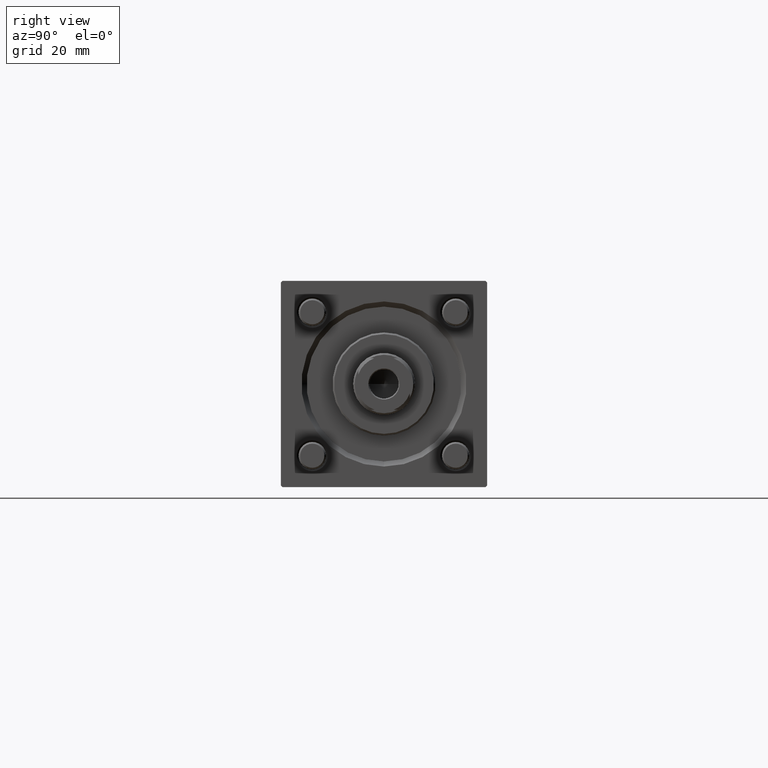
[diagram: clean part render]
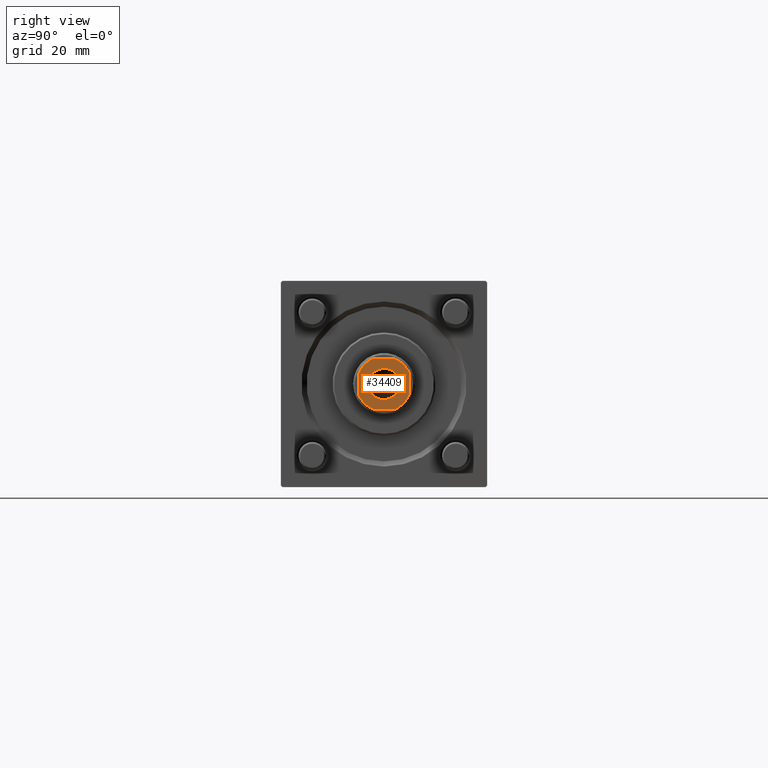
[diagram: same view with one face highlighted and labeled with its STEP entity id]
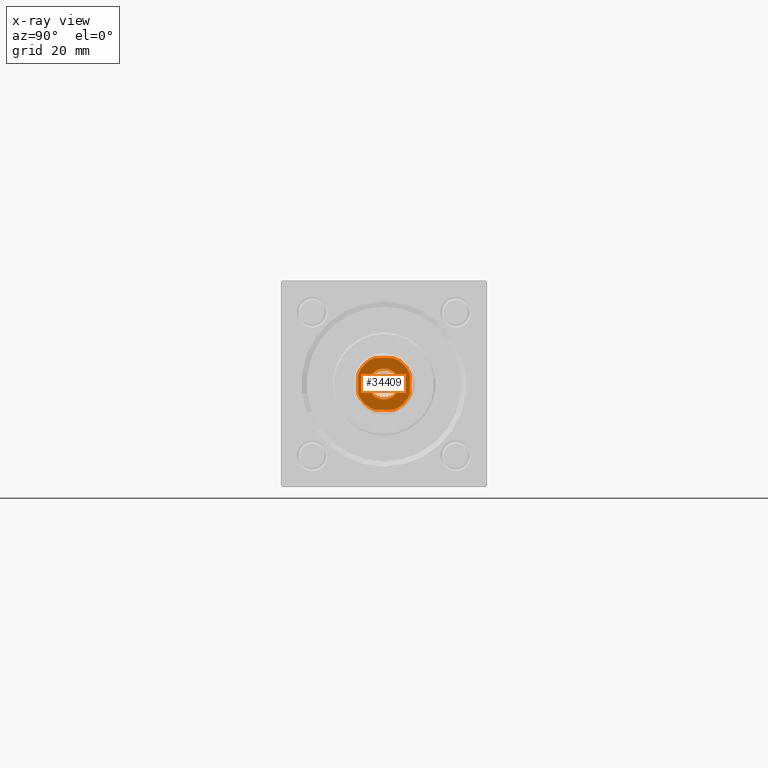
[diagram: x-ray of the same camera — body ghosted, the highlighted face saturated]
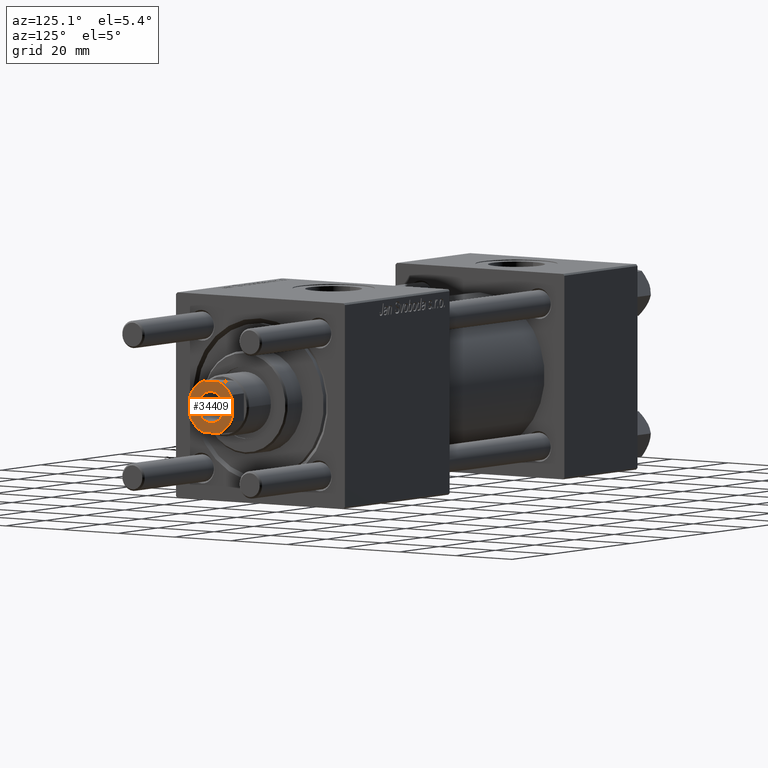
[diagram: same view with one face highlighted and labeled with its STEP entity id]
A machine part, right view. The second image highlights one B-rep face of the part: STEP entity #34409.
The next image is the same camera in x-ray: the body ghosted, the highlighted face saturated — about 0% of this face is hidden behind the body in this view.
A second angle (auxiliary view) of the same face is appended — the face is thin or edge-on in the first view.
In plain terms, the highlighted planar face has unit normal (1, 0, 0).
Its self-contained STEP definition (entity closure, byte-faithful):
#548 = CARTESIAN_POINT ( 'NONE',  ( 0.000000000000000000, 0.000000000000000000, 136.0000000000000000 ) ) ;
#710 = CARTESIAN_POINT ( 'NONE',  ( -7.499999999999997335, -2.783882181414957468, 136.0000000000000000 ) ) ;
#733 = VECTOR ( 'NONE', #4176, 1000.000000000000000 ) ;
#1112 = DIRECTION ( 'NONE',  ( -0.000000000000000000, 0.000000000000000000, 1.000000000000000000 ) ) ;
#1498 = DIRECTION ( 'NONE',  ( 1.000000000000000000, 0.000000000000000000, 0.000000000000000000 ) ) ;
#1933 = ORIENTED_EDGE ( 'NONE', *, *, #7939, .T. ) ;
#2614 = AXIS2_PLACEMENT_3D ( 'NONE', #45197, #5254, #1498 ) ;
#2872 = ORIENTED_EDGE ( 'NONE', *, *, #46602, .T. ) ;
#3051 = DIRECTION ( 'NONE',  ( -0.000000000000000000, 0.000000000000000000, 1.000000000000000000 ) ) ;
#4176 = DIRECTION ( 'NONE',  ( -1.000000000000000000, -1.156482317317871478E-16, -0.000000000000000000 ) ) ;
#5254 = DIRECTION ( 'NONE',  ( 0.000000000000000000, -0.000000000000000000, -1.000000000000000000 ) ) ;
#5270 = DIRECTION ( 'NONE',  ( 1.000000000000000000, 0.000000000000000000, 0.000000000000000000 ) ) ;
#5569 = CARTESIAN_POINT ( 'NONE',  ( -7.499999999999998224, -7.500000000000000000, 136.0000000000000000 ) ) ;
#6250 = DIRECTION ( 'NONE',  ( -0.000000000000000000, 0.000000000000000000, 1.000000000000000000 ) ) ;
#6297 = EDGE_LOOP ( 'NONE', ( #43373, #33730 ) ) ;
#6826 = FACE_BOUND ( 'NONE', #6297, .T. ) ;
#7939 = EDGE_CURVE ( 'NONE', #53651, #29194, #27709, .T. ) ;
#9378 = AXIS2_PLACEMENT_3D ( 'NONE', #13925, #9602, #5270 ) ;
#9602 = DIRECTION ( 'NONE',  ( -0.000000000000000000, 0.000000000000000000, 1.000000000000000000 ) ) ;
#9884 = AXIS2_PLACEMENT_3D ( 'NONE', #54246, #6250, #23798 ) ;
#10021 = VECTOR ( 'NONE', #53920, 1000.000000000000000 ) ;
#10896 = EDGE_CURVE ( 'NONE', #54375, #38078, #27150, .T. ) ;
#12332 = VERTEX_POINT ( 'NONE', #20759 ) ;
#13394 = CARTESIAN_POINT ( 'NONE',  ( -2.783882181414960577, 7.499999999999999112, 136.0000000000000000 ) ) ;
#13925 = CARTESIAN_POINT ( 'NONE',  ( 0.000000000000000000, 0.000000000000000000, 136.0000000000000000 ) ) ;
#14236 = CARTESIAN_POINT ( 'NONE',  ( -7.500000000000000000, 7.499999999999998224, 136.0000000000000000 ) ) ;
#16012 = DIRECTION ( 'NONE',  ( 1.000000000000000000, 0.000000000000000000, 0.000000000000000000 ) ) ;
#17375 = AXIS2_PLACEMENT_3D ( 'NONE', #55359, #3051, #16012 ) ;
#17620 = VECTOR ( 'NONE', #40642, 1000.000000000000000 ) ;
#18032 = CARTESIAN_POINT ( 'NONE',  ( 7.500000000000000888, -2.783882181415129331, 136.0000000000000000 ) ) ;
#19214 = DIRECTION ( 'NONE',  ( 1.000000000000000000, 0.000000000000000000, 0.000000000000000000 ) ) ;
#19256 = CIRCLE ( 'NONE', #22962, 4.549999999999970512 ) ;
#19410 = VERTEX_POINT ( 'NONE', #37830 ) ;
#19922 = CARTESIAN_POINT ( 'NONE',  ( 2.783882181415132440, -7.500000000000000000, 136.0000000000000000 ) ) ;
#20759 = CARTESIAN_POINT ( 'NONE',  ( -7.499999999999999112, 2.783882181414961021, 136.0000000000000000 ) ) ;
#20850 = EDGE_LOOP ( 'NONE', ( #2872, #1933, #31727, #54761, #26480, #34530, #54214, #38933 ) ) ;
#20900 = DIRECTION ( 'NONE',  ( -1.156482317317871478E-16, 1.000000000000000000, -0.000000000000000000 ) ) ;
#22962 = AXIS2_PLACEMENT_3D ( 'NONE', #26808, #31674, #31119 ) ;
#23456 = EDGE_CURVE ( 'NONE', #35692, #12332, #40864, .T. ) ;
#23798 = DIRECTION ( 'NONE',  ( 1.000000000000000000, 0.000000000000000000, 0.000000000000000000 ) ) ;
#25270 = CARTESIAN_POINT ( 'NONE',  ( 0.000000000000000000, 0.000000000000000000, 136.0000000000000000 ) ) ;
#26480 = ORIENTED_EDGE ( 'NONE', *, *, #52238, .T. ) ;
#26794 = CARTESIAN_POINT ( 'NONE',  ( -2.783882181414952139, -7.500000000000000000, 136.0000000000000000 ) ) ;
#26808 = CARTESIAN_POINT ( 'NONE',  ( 0.000000000000000000, 0.000000000000000000, 136.0000000000000000 ) ) ;
#26907 = VERTEX_POINT ( 'NONE', #45087 ) ;
#27150 = LINE ( 'NONE', #5569, #17620 ) ;
#27709 = CIRCLE ( 'NONE', #9378, 8.000000000000040856 ) ;
#29194 = VERTEX_POINT ( 'NONE', #49623 ) ;
#30166 = CIRCLE ( 'NONE', #2614, 4.549999999999970512 ) ;
#30232 = AXIS2_PLACEMENT_3D ( 'NONE', #25270, #38197, #42785 ) ;
#31119 = DIRECTION ( 'NONE',  ( 1.000000000000000000, 0.000000000000000000, 0.000000000000000000 ) ) ;
#31674 = DIRECTION ( 'NONE',  ( 0.000000000000000000, -0.000000000000000000, -1.000000000000000000 ) ) ;
#31727 = ORIENTED_EDGE ( 'NONE', *, *, #35690, .T. ) ;
#33164 = VECTOR ( 'NONE', #20900, 1000.000000000000000 ) ;
#33730 = ORIENTED_EDGE ( 'NONE', *, *, #55247, .T. ) ;
#34409 = ADVANCED_FACE ( 'NONE', ( #6826, #36737 ), #45621, .T. ) ;
#34530 = ORIENTED_EDGE ( 'NONE', *, *, #44318, .T. ) ;
#35690 = EDGE_CURVE ( 'NONE', #29194, #35692, #49002, .T. ) ;
#35692 = VERTEX_POINT ( 'NONE', #13394 ) ;
#35878 = LINE ( 'NONE', #40174, #10021 ) ;
#36737 = FACE_OUTER_BOUND ( 'NONE', #20850, .T. ) ;
#37830 = CARTESIAN_POINT ( 'NONE',  ( -4.549999999999970512, 5.572142936120421828E-16, 136.0000000000000000 ) ) ;
#38078 = VERTEX_POINT ( 'NONE', #19922 ) ;
#38197 = DIRECTION ( 'NONE',  ( -0.000000000000000000, 0.000000000000000000, 1.000000000000000000 ) ) ;
#38434 = LINE ( 'NONE', #43294, #33164 ) ;
#38797 = VERTEX_POINT ( 'NONE', #710 ) ;
#38933 = ORIENTED_EDGE ( 'NONE', *, *, #53107, .T. ) ;
#40174 = CARTESIAN_POINT ( 'NONE',  ( -7.500000000000000000, 7.499999999999998224, 136.0000000000000000 ) ) ;
#40642 = DIRECTION ( 'NONE',  ( 1.000000000000000000, 0.000000000000000000, 0.000000000000000000 ) ) ;
#40864 = CIRCLE ( 'NONE', #52784, 7.999999999999981348 ) ;
#42120 = CIRCLE ( 'NONE', #30232, 7.999999999999979572 ) ;
#42785 = DIRECTION ( 'NONE',  ( 1.000000000000000000, 0.000000000000000000, 0.000000000000000000 ) ) ;
#43294 = CARTESIAN_POINT ( 'NONE',  ( 7.500000000000000000, 7.500000000000000000, 136.0000000000000000 ) ) ;
#43373 = ORIENTED_EDGE ( 'NONE', *, *, #56460, .T. ) ;
#44318 = EDGE_CURVE ( 'NONE', #38797, #54375, #42120, .T. ) ;
#45087 = CARTESIAN_POINT ( 'NONE',  ( 4.549999999999970512, 0.000000000000000000, 136.0000000000000000 ) ) ;
#45197 = CARTESIAN_POINT ( 'NONE',  ( 0.000000000000000000, 0.000000000000000000, 136.0000000000000000 ) ) ;
#45621 = PLANE ( 'NONE',  #9884 ) ;
#46602 = EDGE_CURVE ( 'NONE', #54531, #53651, #38434, .T. ) ;
#49002 = LINE ( 'NONE', #14236, #733 ) ;
#49623 = CARTESIAN_POINT ( 'NONE',  ( 2.783882181415129331, 7.499999999999999112, 136.0000000000000000 ) ) ;
#50356 = CIRCLE ( 'NONE', #17375, 8.000000000000042633 ) ;
#50556 = CARTESIAN_POINT ( 'NONE',  ( 7.500000000000000888, 2.783882181415126222, 136.0000000000000000 ) ) ;
#52238 = EDGE_CURVE ( 'NONE', #12332, #38797, #35878, .T. ) ;
#52784 = AXIS2_PLACEMENT_3D ( 'NONE', #548, #1112, #19214 ) ;
#53107 = EDGE_CURVE ( 'NONE', #38078, #54531, #50356, .T. ) ;
#53651 = VERTEX_POINT ( 'NONE', #50556 ) ;
#53920 = DIRECTION ( 'NONE',  ( 1.156482317317871725E-16, -1.000000000000000000, 0.000000000000000000 ) ) ;
#54214 = ORIENTED_EDGE ( 'NONE', *, *, #10896, .T. ) ;
#54246 = CARTESIAN_POINT ( 'NONE',  ( 0.000000000000000000, 0.000000000000000000, 136.0000000000000000 ) ) ;
#54375 = VERTEX_POINT ( 'NONE', #26794 ) ;
#54531 = VERTEX_POINT ( 'NONE', #18032 ) ;
#54761 = ORIENTED_EDGE ( 'NONE', *, *, #23456, .T. ) ;
#55247 = EDGE_CURVE ( 'NONE', #19410, #26907, #19256, .T. ) ;
#55359 = CARTESIAN_POINT ( 'NONE',  ( 0.000000000000000000, 0.000000000000000000, 136.0000000000000000 ) ) ;
#56460 = EDGE_CURVE ( 'NONE', #26907, #19410, #30166, .T. ) ;